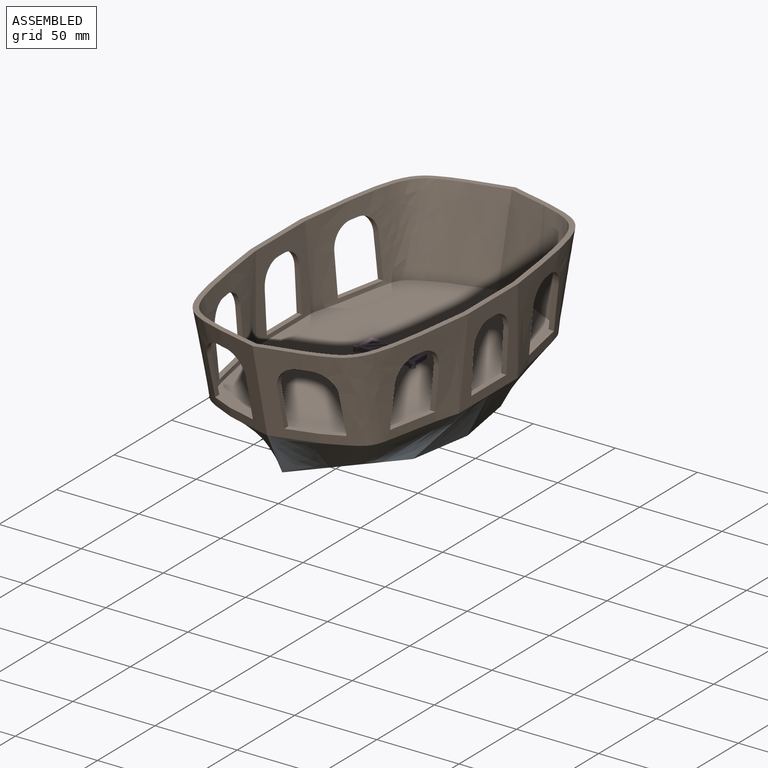
[diagram: assembled view]
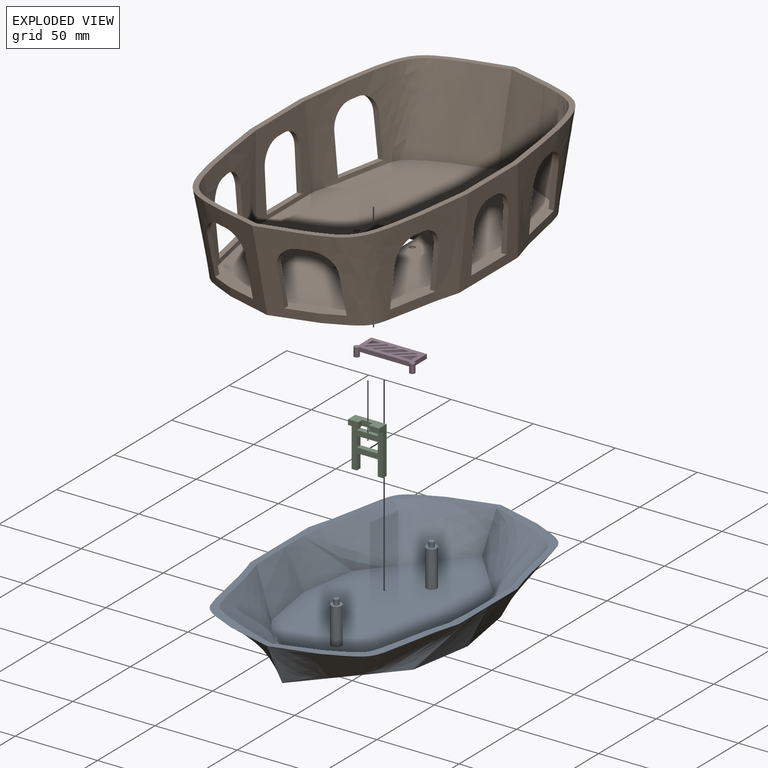
[diagram: exploded view]
GUIDED TOUR — MATED ASSEMBLY (Onshape document 8aa12e02fb0f6034d5c4be83, AutoMate assembly 8aa12e02fb0f6034d5c4be83_26aea86f47b20bcae83e0710_cf32a9cc935bd39cea59b371_default)

This assembly has 4 components, labeled P0..P3 below (a component is one placed occurrence of a part; the same part can appear more than once), held together by 6 mates. A mate is a constraint between two components; its type names the relative motion it leaves free:
  CYLINDRICAL — leaves both rotation about and translation along the listed axis free,
  PLANAR — leaves sliding in the plane through the listed point (normal = the listed direction) and rotation about that normal free.
Axis/direction vectors are unit vectors and 'through' points are millimeter coordinates, both in the assembly's world frame.

MATES
  1. PLANAR "Planar 2": P2 <-> P1, direction (0.000, 0.000, -1.000) through (-23.09, -103.92, -63.32) mm
  2. PLANAR "Planar 3": P2 <-> P1, direction (0.000, -1.000, 0.000) through (-23.09, -103.92, -74.96) mm
  3. CYLINDRICAL "Cylindrical 2": P3 <-> P1, axis (0.000, 0.000, 1.000) through (-38.44, -91.22, -63.51) mm
  4. PLANAR "Planar 1": P1 <-> P0, direction (0.000, 0.000, -1.000) through (-21.80, -132.57, -66.50) mm
  5. PLANAR "Planar 4": P1 <-> P3, direction (0.000, 0.000, 1.000) through (-21.80, -91.22, -63.32) mm
  6. CYLINDRICAL "Cylindrical 1": P1 <-> P0, axis (0.000, 0.000, -1.000) through (-21.80, -132.57, -64.91) mm

ASSEMBLY ORDER
  1. P3 — the base component [order verified]
  2. P2 [order verified]
  3. P1 [order verified]
  4. P0 [order verified]
Order-tag legend:
  [order verified] — this step's position reverses a verified removal order: the component was checked to insert without passing through the ones already placed.

Of the 4 components, 2 carry the full construction recipe — the FeatureScript program that regenerates the part's solid from scratch; the rest are supplied as boundary geometry only.
Each toured component is shown spotlighted twice — in the assembled view, then in the exploded view, where a leader line traces a displaced component back to its assembled socket (saturated green if recipe-attached, orange if geometry-only; every other component desaturated gray) — followed by its recipe or geometry summary and the mates that hold it.
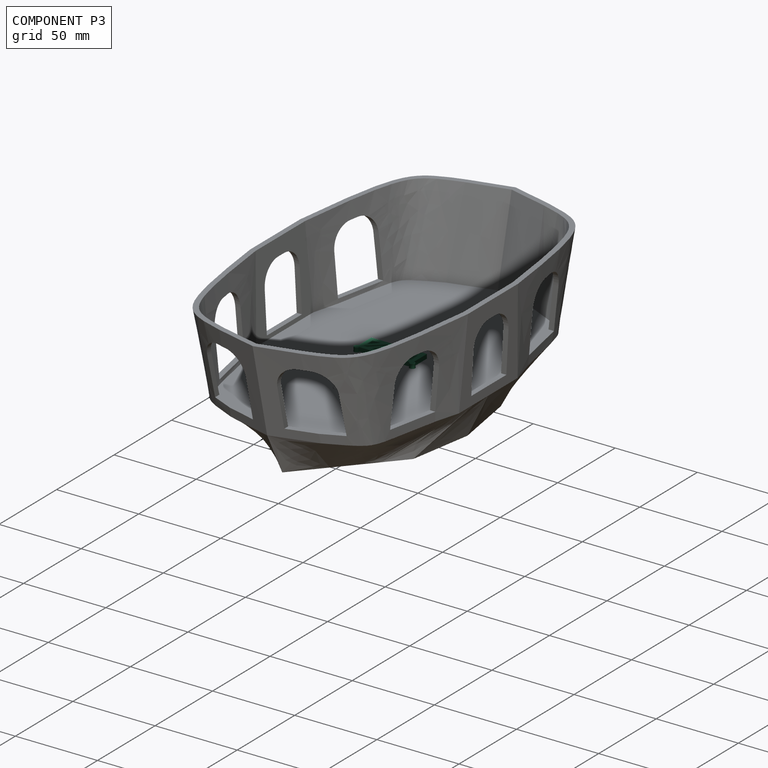
[diagram: component P3 — assembled]
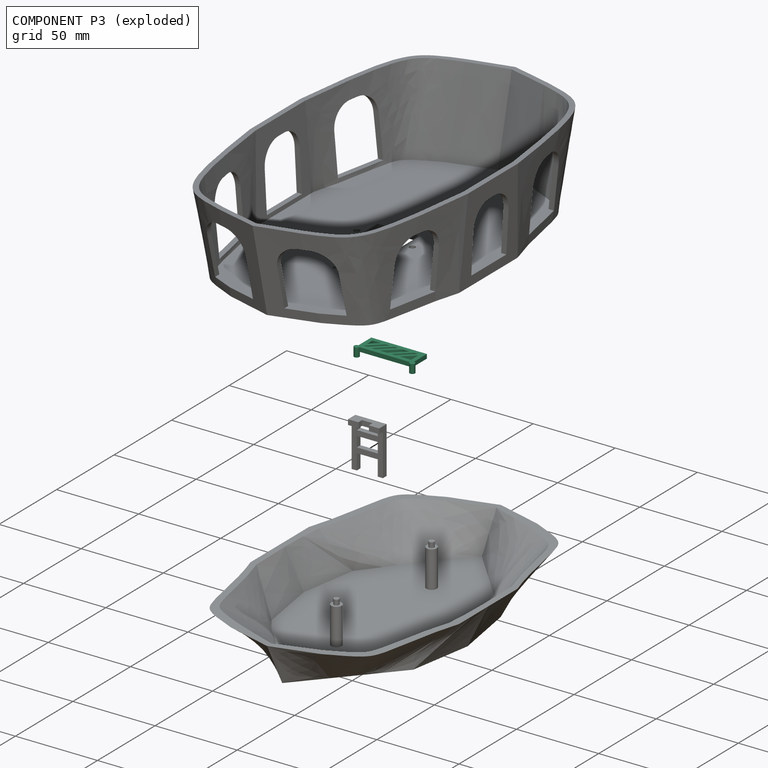
[diagram: component P3 — exploded]
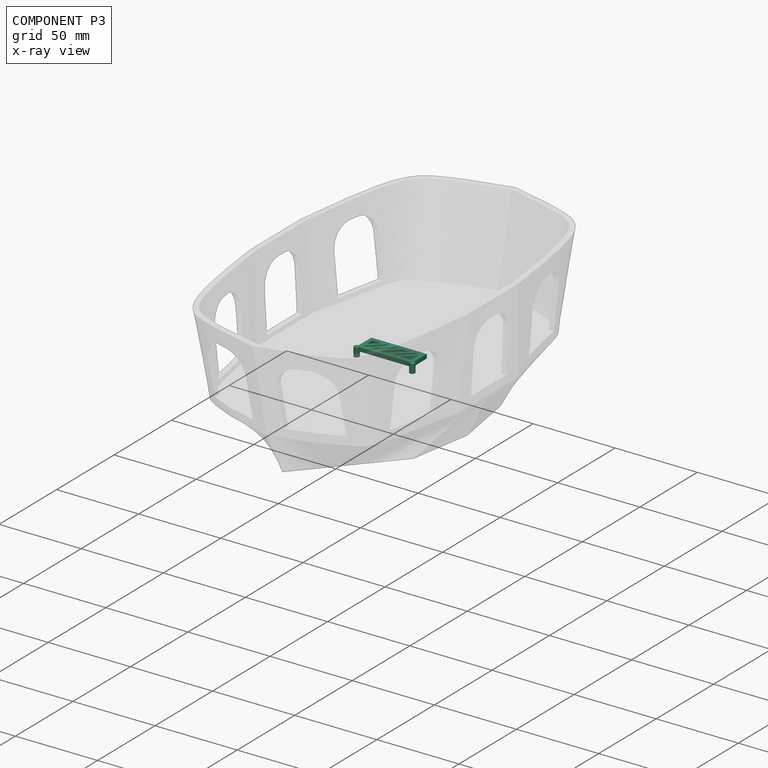
[diagram: component P3 — x-ray view]
COMPONENT P3 — recipe-attached (CADFS 00413846, mesh-verified: the recipe's output STEP matches this component's geometry to below the mesh-comparison resolution (tessellation chordal tolerance ~0.0601 mm)).
Held by: CYLINDRICAL mate "Cylindrical 2" to P1; PLANAR mate "Planar 4" to P1.
Construction recipe (FeatureScript — the CAD program that rebuilds this solid; sketch coordinates are in the units given by the * unit suffixes, e.g. mm):

FeatureScript 1511;
import(path : "onshape/std/geometry.fs", version : "1511.0");
import(path : "onshape/std/common.fs", version : "1511.0");
const mm = millimeter;
const VERTEX = EntityType.VERTEX;
const EDGE = EntityType.EDGE;
const FACE = EntityType.FACE;
const BODY = EntityType.BODY;
function v(x, y){return vector(x, y);}
function OD(order){return orderDisambiguation(order);}
function OSD(set){return originalSetDisambiguation(set);}
function TD(topology){return topologyDisambiguation(topology);}
function TDD(query){return trueDependencyDisambiguation(query);}
function sQuery(a, b, c) {return sketchEntityQuery(a, b, c);}

annotation { "Feature Type Name" : "Feature", "Feature Type Description" : "" }
export const myFeature = defineFeature(function(context is Context, id is Id, definition is map)
    precondition{}
    {
        {
            var Q0;
            Q0=qCreatedBy(makeId("Top.planeOp"),FACE);
            var sketch = newSketch(context, id + "F0", { "sketchPlane" : qUnion([Q0])});
            skLineSegment(sketch, "E0", {"start": v(0, 1.59) * mm, "end": v(0, 12.7) * mm});
            skLineSegment(sketch, "E1", {"start": v(0, 12.7) * mm, "end": v(-33.87, 12.7) * mm});
            skLineSegment(sketch, "E2", {"start": v(-33.87, 12.7) * mm, "end": v(-33.87, 1.59) * mm});
            skLineSegment(sketch, "E3", {"start": v(-32.28, 0) * mm, "end": v(-1.59, 0) * mm});
            skCircle(sketch, "E4", {"center": v(0, 0) * mm, "radius": 1.59 * mm});
            skCircle(sketch, "E5", {"center": v(-33.87, 0) * mm, "radius": 1.59 * mm});
            skLineSegment(sketch, "E6", {"start": v(-33.87, 7.14) * mm, "end": v(-33.87, 9.68) * mm});
            skLineSegment(sketch, "E7", {"start": v(-25.96, 0) * mm, "end": v(-23.42, 0) * mm});
            skLineSegment(sketch, "E8", {"start": v(-27.72, 10.16) * mm, "end": v(-19.28, 2.54) * mm});
            skPoint(sketch, "E8.endSnap0", {"position": v(-16.93, 0) * mm});
            skLineSegment(sketch, "E9", {"start": v(-16.47, 0) * mm, "end": v(-13.93, 0) * mm});
            skLineSegment(sketch, "E10", {"start": v(-16.74, 2.54) * mm, "end": v(-25.18, 10.16) * mm});
            skLineSegment(sketch, "E11.0", {"start": v(-31.33, 10.16) * mm, "end": v(-31.33, 2.54) * mm});
            skLineSegment(sketch, "E11.1", {"start": v(-2.54, 10.16) * mm, "end": v(-31.33, 10.16) * mm});
            skLineSegment(sketch, "E11.2", {"start": v(-2.54, 2.54) * mm, "end": v(-2.54, 10.16) * mm});
            skLineSegment(sketch, "E12.0", {"start": v(-31.33, 2.54) * mm, "end": v(-2.54, 2.54) * mm});
            skLineSegment(sketch, "E13", {"start": v(-25.18, 10.16) * mm, "end": v(-20.64, 10.16) * mm});
            skLineSegment(sketch, "E14", {"start": v(-20.64, 10.16) * mm, "end": v(-12.2, 2.54) * mm});
            skLineSegment(sketch, "E15", {"start": v(-12.2, 2.54) * mm, "end": v(-9.66, 2.54) * mm});
            skLineSegment(sketch, "E16", {"start": v(-9.66, 2.54) * mm, "end": v(-18.1, 10.16) * mm});
            skLineSegment(sketch, "E17", {"start": v(-18.1, 10.16) * mm, "end": v(-15.56, 10.16) * mm});
            skLineSegment(sketch, "E18", {"start": v(-15.56, 10.16) * mm, "end": v(-7.12, 2.54) * mm});
            skLineSegment(sketch, "E19", {"start": v(-7.12, 2.54) * mm, "end": v(-4.58, 2.54) * mm});
            skLineSegment(sketch, "E20", {"start": v(-4.58, 2.54) * mm, "end": v(-13.02, 10.16) * mm});
            skLineSegment(sketch, "E21", {"start": v(-13.02, 10.16) * mm, "end": v(-10.48, 10.16) * mm});
            skLineSegment(sketch, "E22", {"start": v(-10.48, 10.16) * mm, "end": v(-2.54, 2.99) * mm});
            skLineSegment(sketch, "E23", {"start": v(-2.54, 2.99) * mm, "end": v(-2.54, 5.53) * mm});
            skLineSegment(sketch, "E24", {"start": v(-2.54, 5.53) * mm, "end": v(-7.66, 10.16) * mm});
            skLineSegment(sketch, "E25", {"start": v(-27.72, 10.16) * mm, "end": v(-30.26, 10.16) * mm});
            skLineSegment(sketch, "E26", {"start": v(-30.26, 10.16) * mm, "end": v(-21.82, 2.54) * mm});
            skLineSegment(sketch, "E27", {"start": v(-21.82, 2.54) * mm, "end": v(-24.36, 2.54) * mm});
            skLineSegment(sketch, "E28", {"start": v(-24.36, 2.54) * mm, "end": v(-31.33, 8.83) * mm});
            skLineSegment(sketch, "E29", {"start": v(-33.87, 1.59) * mm, "end": v(-33.87, 0) * mm});
            skLineSegment(sketch, "E30", {"start": v(-32.28, 0) * mm, "end": v(-33.87, 0) * mm});
            skLineSegment(sketch, "E31", {"start": v(-1.59, 0) * mm, "end": v(0, 0) * mm});
            skLineSegment(sketch, "E32", {"start": v(0, 0) * mm, "end": v(0, 1.59) * mm});
            skSolve(sketch);
        }
        {
            var Q0;
            {var subQ2=sQuery(id+"F0.wireOp",EDGE,"E31");Q0=makeQuery(id+"F0.imprint","IMPRINT",FACE,{"disambiguationData":[TD([[makeQuery(id+"F0.imprint","IMPRINT",EDGE,{"derivedFrom":subQ2}),1.0]])]});}
            var Q1;
            {var subQ0=sQuery(id+"F0.wireOp",EDGE,"E29");Q1=makeQuery(id+"F0.imprint","IMPRINT",FACE,{"disambiguationData":[TD([[makeQuery(id+"F0.imprint","IMPRINT",EDGE,{"derivedFrom":subQ0}),1.0]])]});}
            var Q2;
            {var subQ32=sQuery(id+"F0.wireOp",EDGE,"E0");Q2=makeQuery(id+"F0.imprint","IMPRINT",FACE,{"disambiguationData":[TD([[makeQuery(id+"F0.imprint","IMPRINT",EDGE,{"derivedFrom":subQ32}),1.0]])]});}
            var Q3;
            {var subQ0=sQuery(id+"F0.wireOp",EDGE,"E8");Q3=makeQuery(id+"F0.imprint","IMPRINT",FACE,{"disambiguationData":[TD([[makeQuery(id+"F0.imprint","IMPRINT",EDGE,{"derivedFrom":subQ0}),1.0]])]});}
            var Q4;
            {var subQ0=sQuery(id+"F0.wireOp",EDGE,"E26");Q4=makeQuery(id+"F0.imprint","IMPRINT",FACE,{"disambiguationData":[TD([[makeQuery(id+"F0.imprint","IMPRINT",EDGE,{"derivedFrom":subQ0}),-1.0]])]});}
            var Q5;
            {var subQ0=sQuery(id+"F0.wireOp",EDGE,"E14");Q5=makeQuery(id+"F0.imprint","IMPRINT",FACE,{"disambiguationData":[TD([[makeQuery(id+"F0.imprint","IMPRINT",EDGE,{"derivedFrom":subQ0}),1.0]])]});}
            var Q6;
            {var subQ0=sQuery(id+"F0.wireOp",EDGE,"E18");Q6=makeQuery(id+"F0.imprint","IMPRINT",FACE,{"disambiguationData":[TD([[makeQuery(id+"F0.imprint","IMPRINT",EDGE,{"derivedFrom":subQ0}),1.0]])]});}
            var Q7;
            {var subQ0=sQuery(id+"F0.wireOp",EDGE,"E22");Q7=makeQuery(id+"F0.imprint","IMPRINT",FACE,{"disambiguationData":[TD([[makeQuery(id+"F0.imprint","IMPRINT",EDGE,{"derivedFrom":subQ0}),1.0]])]});}
            extrude(context, id + "F1", {"entities" : qUnion([Q0, Q1, Q2, Q3, Q4, Q5, Q6, Q7]), "depth" : 2.54 * mm});
        }
        {
            var Q0;
            {var subQ0=sQuery(id+"F0.wireOp",EDGE,"E29");Q0=makeQuery(id+"F0.imprint","IMPRINT",FACE,{"disambiguationData":[TD([[makeQuery(id+"F0.imprint","IMPRINT",EDGE,{"derivedFrom":subQ0}),-1.0]])]});}
            var Q1;
            {var subQ2=sQuery(id+"F0.wireOp",EDGE,"E31");Q1=makeQuery(id+"F0.imprint","IMPRINT",FACE,{"disambiguationData":[TD([[makeQuery(id+"F0.imprint","IMPRINT",EDGE,{"derivedFrom":subQ2}),-1.0]])]});}
            var Q2;
            {var subQ0=sQuery(id+"F0.wireOp",EDGE,"E29");Q2=makeQuery(id+"F0.imprint","IMPRINT",FACE,{"disambiguationData":[TD([[makeQuery(id+"F0.imprint","IMPRINT",EDGE,{"derivedFrom":subQ0}),1.0]])]});}
            var Q3;
            {var subQ2=sQuery(id+"F0.wireOp",EDGE,"E31");Q3=makeQuery(id+"F0.imprint","IMPRINT",FACE,{"disambiguationData":[TD([[makeQuery(id+"F0.imprint","IMPRINT",EDGE,{"derivedFrom":subQ2}),1.0]])]});}
            extrude(context, id + "F2", {"entities" : qUnion([Q0, Q1, Q2, Q3]), "operationType" : NewBodyOperationType.ADD, "depth" : 5.46 * mm});
        }
    });
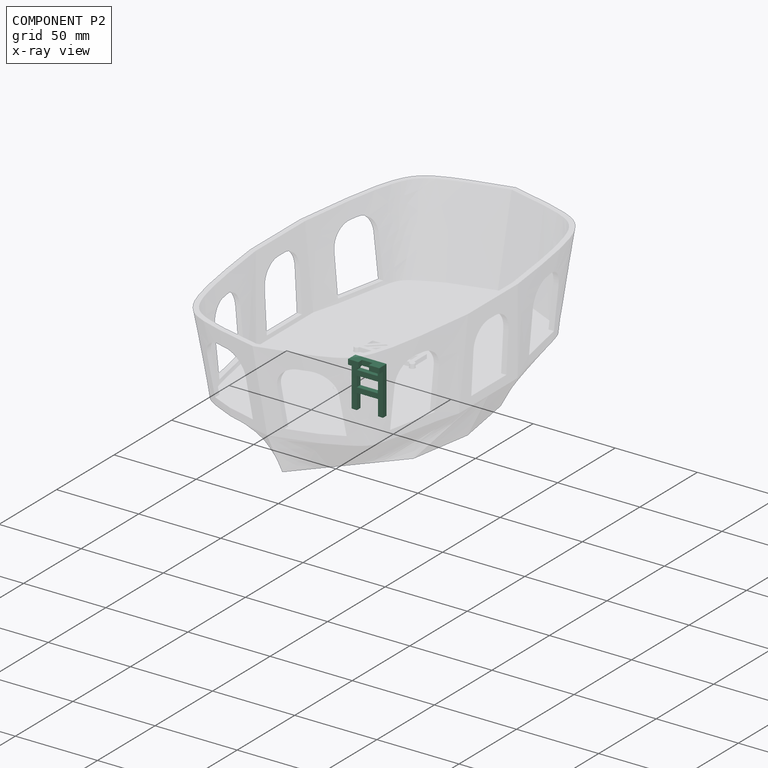
[diagram: component P2 — x-ray view]
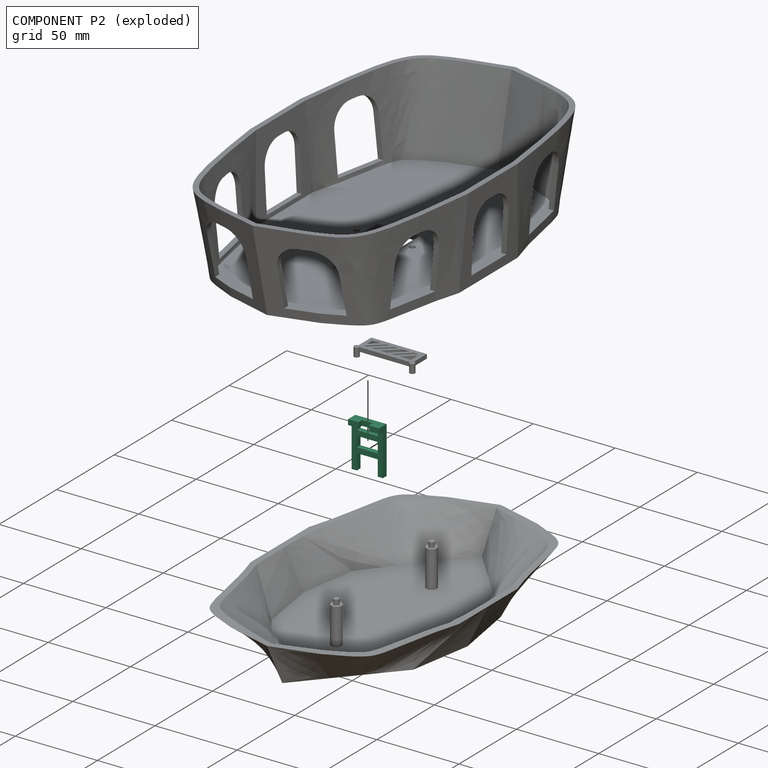
[diagram: component P2 — exploded]
COMPONENT P2 — recipe-attached (CADFS 00413857, mesh-verified: the recipe's output STEP matches this component's geometry to below the mesh-comparison resolution (tessellation chordal tolerance ~0.0524 mm)).
Held by: PLANAR mate "Planar 2" to P1; PLANAR mate "Planar 3" to P1.
Construction recipe (FeatureScript — the CAD program that rebuilds this solid; sketch coordinates are in the units given by the * unit suffixes, e.g. mm):

FeatureScript 1511;
import(path : "onshape/std/geometry.fs", version : "1511.0");
import(path : "onshape/std/common.fs", version : "1511.0");
const mm = millimeter;
const VERTEX = EntityType.VERTEX;
const EDGE = EntityType.EDGE;
const FACE = EntityType.FACE;
const BODY = EntityType.BODY;
function v(x, y){return vector(x, y);}
function OD(order){return orderDisambiguation(order);}
function OSD(set){return originalSetDisambiguation(set);}
function TD(topology){return topologyDisambiguation(topology);}
function TDD(query){return trueDependencyDisambiguation(query);}
function sQuery(a, b, c) {return sketchEntityQuery(a, b, c);}

annotation { "Feature Type Name" : "Feature", "Feature Type Description" : "" }
export const myFeature = defineFeature(function(context is Context, id is Id, definition is map)
    precondition{}
    {
        {
            var Q0;
            Q0=qCreatedBy(makeId("Top.planeOp"),FACE);
            var sketch = newSketch(context, id + "F0", { "sketchPlane" : qUnion([Q0])});
            skLineSegment(sketch, "E0", {"start": v(0, 0) * mm, "end": v(0, 25.4) * mm});
            skLineSegment(sketch, "E1", {"start": v(0, 0) * mm, "end": v(3.18, 0) * mm});
            skLineSegment(sketch, "E2", {"start": v(19.05, 0) * mm, "end": v(19.05, 25.4) * mm});
            skLineSegment(sketch, "E3.0", {"start": v(0, 3.18) * mm, "end": v(3.18, 3.18) * mm});
            skLineSegment(sketch, "E4.0", {"start": v(3.18, 0) * mm, "end": v(3.18, 25.4) * mm});
            skLineSegment(sketch, "E5.0", {"start": v(15.88, 0) * mm, "end": v(15.87, 25.4) * mm});
            skLineSegment(sketch, "E6", {"start": v(0, 25.4) * mm, "end": v(3.18, 25.4) * mm});
            skLineSegment(sketch, "E7", {"start": v(15.87, 25.4) * mm, "end": v(19.05, 25.4) * mm});
            skLineSegment(sketch, "E8.0", {"start": v(0, 9.53) * mm, "end": v(19.05, 9.53) * mm});
            skLineSegment(sketch, "E9.0", {"start": v(0, 12.7) * mm, "end": v(19.05, 12.7) * mm});
            skLineSegment(sketch, "E10.0", {"start": v(0, 19.05) * mm, "end": v(19.05, 19.05) * mm});
            skLineSegment(sketch, "E11.0", {"start": v(0, 22.23) * mm, "end": v(19.05, 22.23) * mm});
            skLineSegment(sketch, "E12.trimOffspring", {"start": v(15.88, 0) * mm, "end": v(19.05, 0) * mm});
            skLineSegment(sketch, "E13.trimOffspring", {"start": v(15.88, 3.18) * mm, "end": v(19.05, 3.18) * mm});
            skSolve(sketch);
        }
        {
            var Q0;
            Q0 = qSketchRegion(id + "F0", true);
            var Q1;
            {var subQ0=sQuery(id+"F0.wireOp",EDGE,"E8.0");var subQ1=sQuery(id+"F0.wireOp",EDGE,"E4.0");var subQ2=makeQuery(id+"F0.imprint","INTERSECT",VERTEX,{"derivedFrom":[subQ1,subQ0]});Q1=makeQuery(id+"F0.imprint","IMPRINT",FACE,{"disambiguationData":[TD([[makeQuery(id+"F0.imprint","IMPRINT",EDGE,{"disambiguationData":[TD([[subQ2,-1.0]])],"derivedFrom":subQ1}),-1.0]])]});}
            extrude(context, id + "F1", {"entities" : qUnion([Q0, Q1]), "depth" : 3.17 * mm});
        }
        {
            var Q0;
            Q0=makeQuery(id+"F1.opExtrude","CAP_FACE",FACE,{"disambiguationData":[OSD([sQuery(id+"F0.wireOp",EDGE,"E0"),sQuery(id+"F0.wireOp",EDGE,"E1"),sQuery(id+"F0.wireOp",EDGE,"E2"),sQuery(id+"F0.wireOp",EDGE,"E3.0"),sQuery(id+"F0.wireOp",EDGE,"E4.0"),sQuery(id+"F0.wireOp",EDGE,"E5.0"),sQuery(id+"F0.wireOp",EDGE,"E6"),sQuery(id+"F0.wireOp",EDGE,"E7"),sQuery(id+"F0.wireOp",EDGE,"E8.0"),sQuery(id+"F0.wireOp",EDGE,"E9.0"),sQuery(id+"F0.wireOp",EDGE,"E10.0"),sQuery(id+"F0.wireOp",EDGE,"E11.0")])],"isStart":true});
            var sketch = newSketch(context, id + "F2", { "sketchPlane" : qUnion([Q0])});
            skLineSegment(sketch, "E14", {"start": v(19.05, -25.4) * mm, "end": v(0, -25.4) * mm});
            skLineSegment(sketch, "E15", {"start": v(0, -25.4) * mm, "end": v(0, -28.58) * mm});
            skLineSegment(sketch, "E16", {"start": v(0, -28.58) * mm, "end": v(19.05, -28.58) * mm});
            skLineSegment(sketch, "E17", {"start": v(19.05, -28.58) * mm, "end": v(19.05, -25.4) * mm});
            skSolve(sketch);
        }
        {
            var Q0;
            Q0 = qSketchRegion(id + "F2", true);
            extrude(context, id + "F3", {"entities" : qUnion([Q0]), "operationType" : NewBodyOperationType.ADD, "oppositeDirection" : true, "depth" : 6.35 * mm});
        }
        {
            var Q0;
            Q0=makeQuery(id+"F3.opExtrude","SWEPT_FACE",FACE,{"disambiguationData":[OSD([sQuery(id+"F2.wireOp",EDGE,"E16")])]});
            var sketch = newSketch(context, id + "F4", { "sketchPlane" : qUnion([Q0])});
            skLineSegment(sketch, "E18", {"start": v(0, 6.35) * mm, "end": v(-6.35, 6.35) * mm});
            skLineSegment(sketch, "E19", {"start": v(-6.35, 6.35) * mm, "end": v(-6.35, 3.18) * mm});
            skLineSegment(sketch, "E20", {"start": v(-6.35, 3.18) * mm, "end": v(-12.7, 3.18) * mm});
            skPoint(sketch, "E20.endSnap0", {"position": v(-19.05, 3.18) * mm});
            skLineSegment(sketch, "E21", {"start": v(-12.7, 3.18) * mm, "end": v(-12.7, 6.35) * mm});
            skLineSegment(sketch, "E22", {"start": v(-12.7, 6.35) * mm, "end": v(-6.35, 6.35) * mm});
            skSolve(sketch);
        }
        {
            var Q0;
            Q0 = qSketchRegion(id + "F4", true);
            extrude(context, id + "F5", {"entities" : qUnion([Q0]), "operationType" : NewBodyOperationType.REMOVE, "oppositeDirection" : true, "depth" : 25.4 * mm});
        }
    });
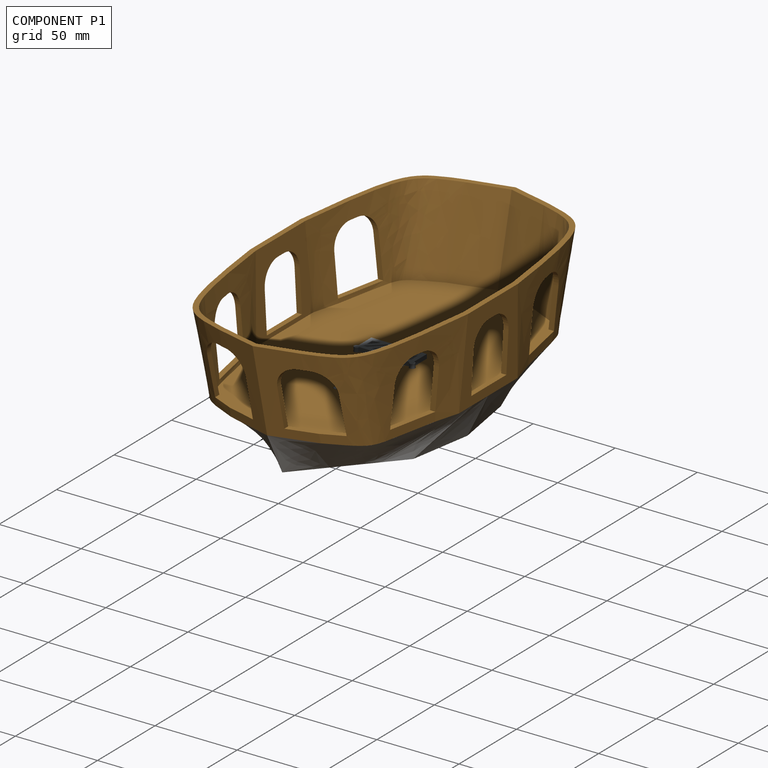
[diagram: component P1 — assembled]
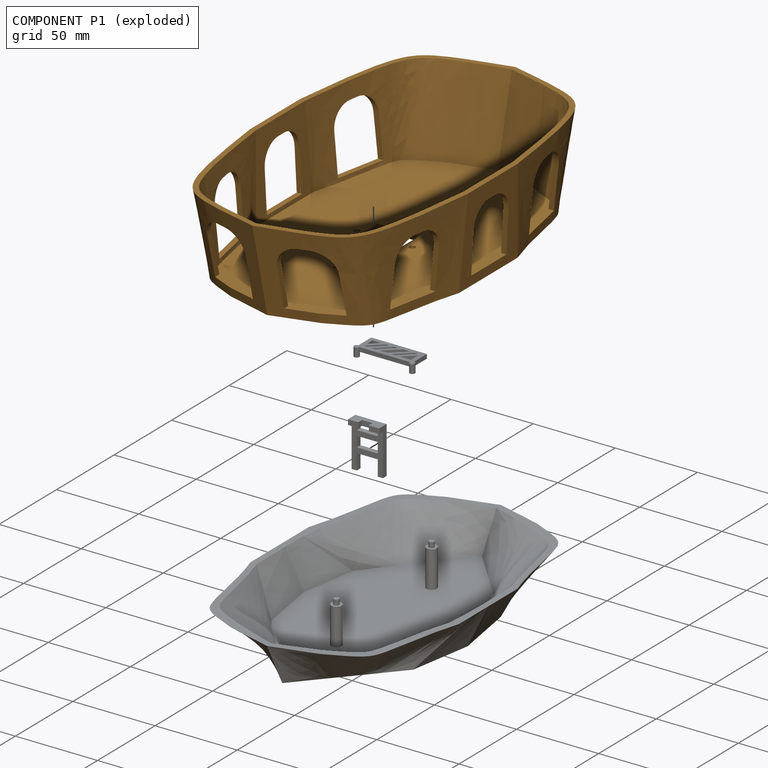
[diagram: component P1 — exploded]
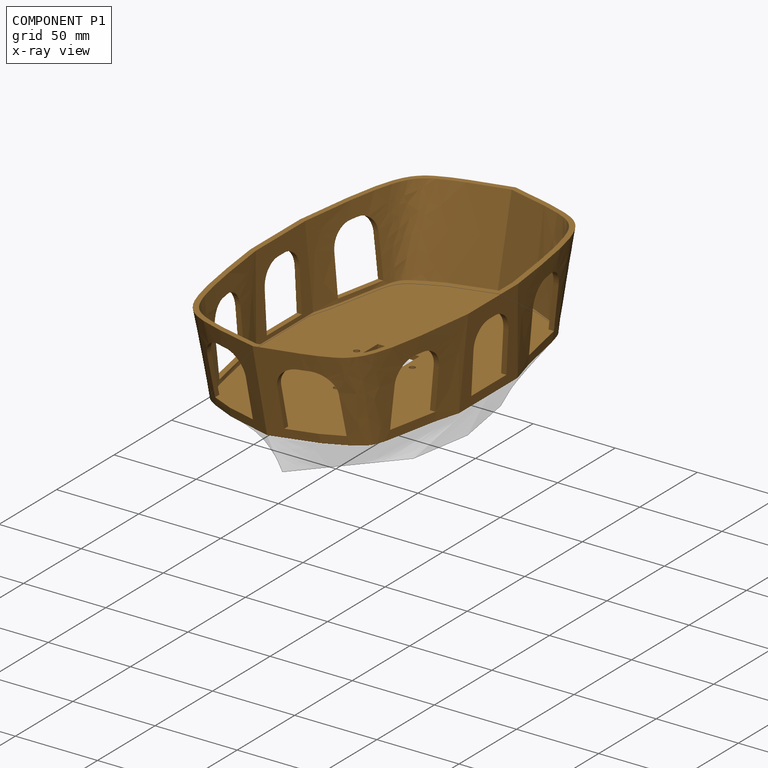
[diagram: component P1 — x-ray view]
COMPONENT P1 — geometry summary (no construction recipe available for this part):
  bounding box: 235.0 x 139.0 x 60.3 mm
  B-rep topology: 1 solid, 79 faces, 480 edges
  volume: 129691 mm^3 (7% of its bounding box)
  symmetry: mirror-symmetric across its x mid-plane
Held by: PLANAR mate "Planar 2" to P2; PLANAR mate "Planar 3" to P2; CYLINDRICAL mate "Cylindrical 2" to P3; PLANAR mate "Planar 1" to P0; PLANAR mate "Planar 4" to P3; CYLINDRICAL mate "Cylindrical 1" to P0.
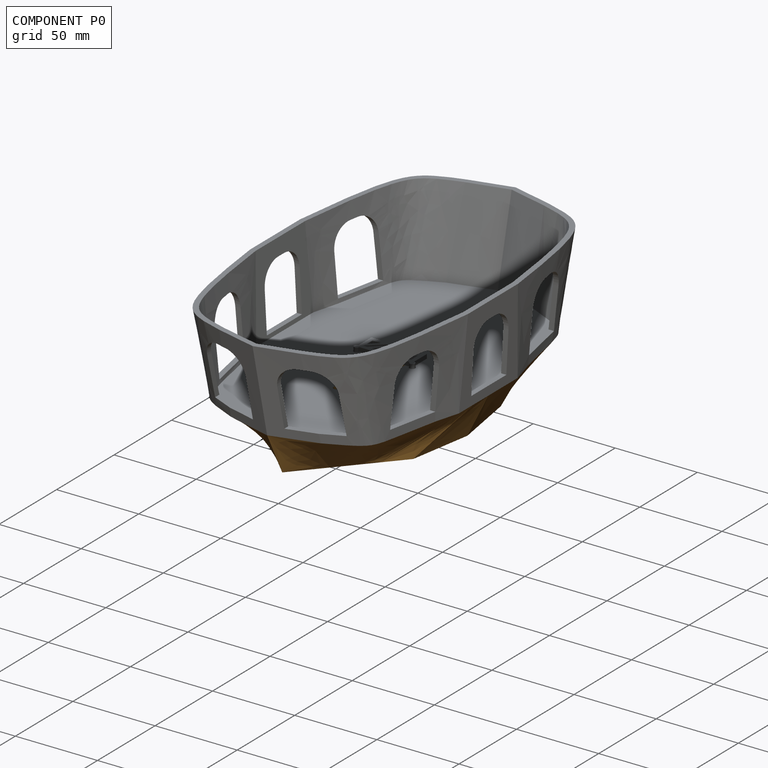
[diagram: component P0 — assembled]
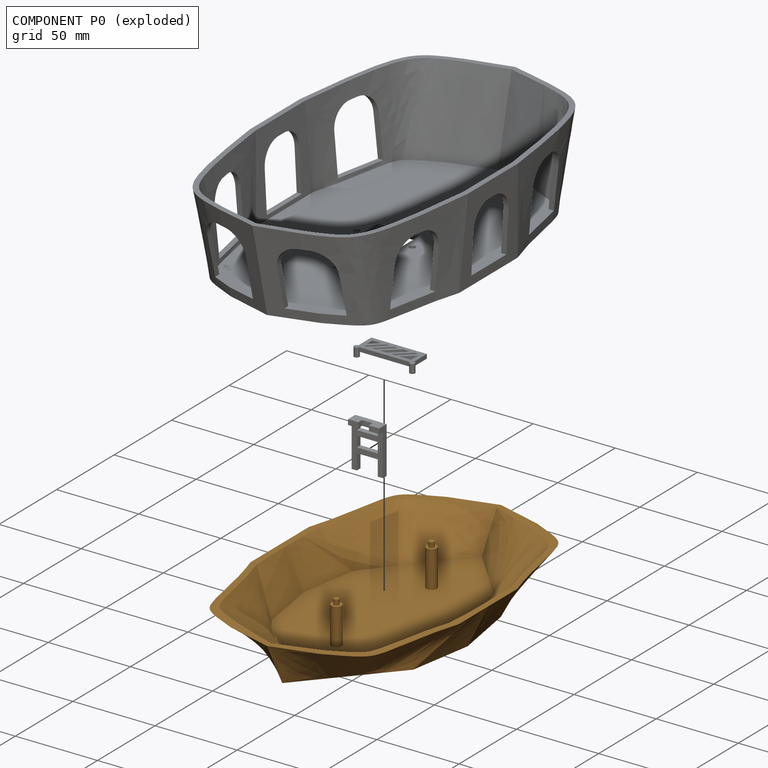
[diagram: component P0 — exploded]
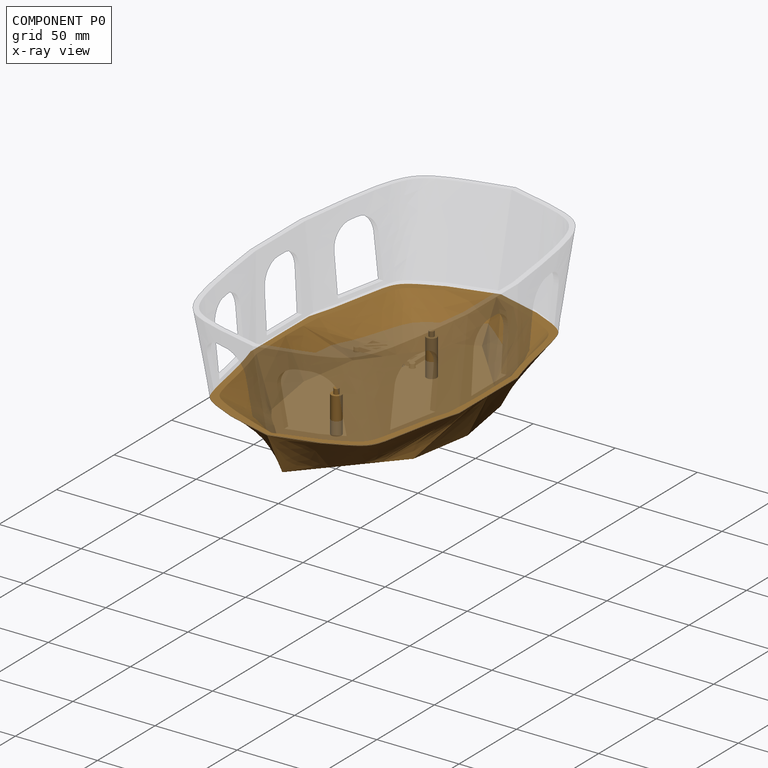
[diagram: component P0 — x-ray view]
COMPONENT P0 — geometry summary (no construction recipe available for this part):
  bounding box: 209.8 x 134.7 x 34.9 mm
  B-rep topology: 1 solid, 39 faces, 198 edges
  volume: 83491 mm^3 (8% of its bounding box)
  symmetry: 2-fold rotationally symmetric about the z axis
Held by: PLANAR mate "Planar 1" to P1; CYLINDRICAL mate "Cylindrical 1" to P1.
PROVENANCE & LICENSES
Assembly (occurrences, transforms, mates, per-part STEP geometry): AutoMate dataset, Zenodo record 7776208, CC0.
Construction recipes: CADFS (HuggingFace VladPyatov/CADFS, CC-BY-4.0, layered over the ABC dataset), FeatureScript reconstruction programs keyed by ABC model id.
Join: ABC meta listings map ABC model id -> Onshape documentId; within a shared document, parts are matched by geometric signature (bounding-box dims + volume at 0.1% relative tolerance, exact B-rep face/solid counts).
Verification: 2 of this assembly's 4 components carry a recipe attachment, and every attachment is mesh-verified: the CADFS STEP and the AutoMate member STEP were compared as meshes in their shared local frame (symmetric sampled-point-to-mesh distance); worst across the 2 attachments: below the mesh-comparison resolution (tessellation chordal tolerance ~0.0601 mm) on a 40 mm part.
Renders: orthographic iso camera (az 35 / el 25); the floor grid conveys scale (grid pitch printed in each image; no ruler). In the exploded view each component is displaced by its stored offset vector: the offsets alone carry the explosion direction (mate normal/axis signs are not orientation cues and do not encode it), and separation distances are assigned per mate-chain, not proportionally to assembly-order depth.
